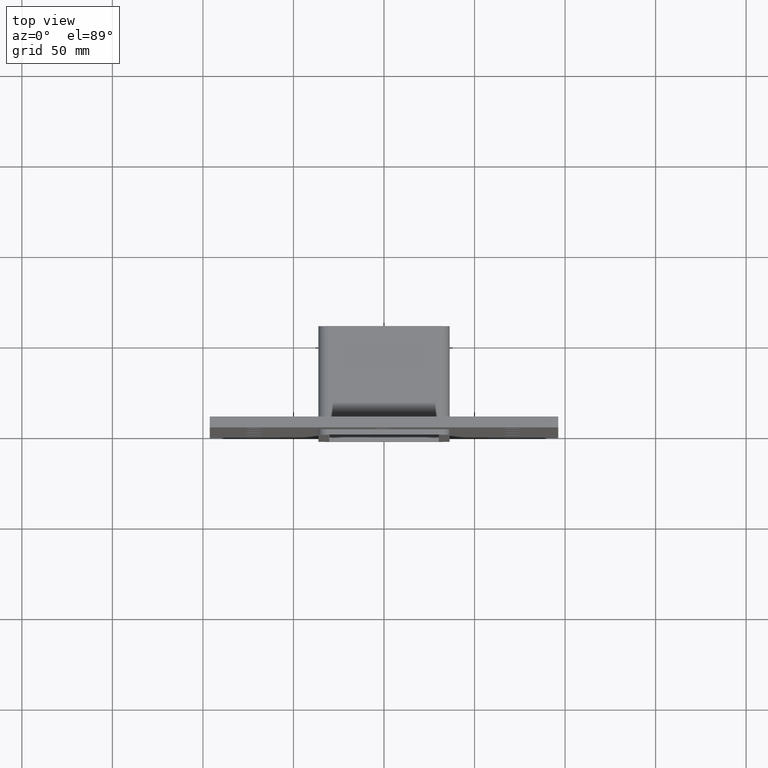
[diagram: clean part render]
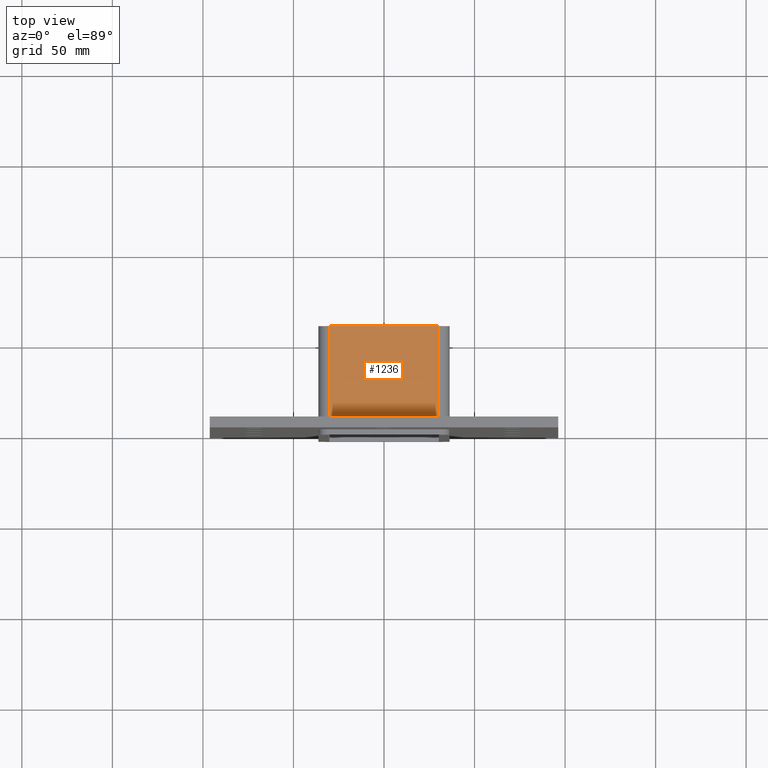
[diagram: same view with one face highlighted and labeled with its STEP entity id]
A machine part, top view. The second image highlights one B-rep face of the part: STEP entity #1236.
In plain terms, the highlighted planar face has unit normal (0, 0, 1).
Its self-contained STEP definition (entity closure, byte-faithful):
#515=CARTESIAN_POINT('',(30.250000000000004,6.000000000000001,115.0));
#516=VERTEX_POINT('',#515);
#524=CARTESIAN_POINT('',(-30.250000000000004,6.000000000000001,115.0));
#525=VERTEX_POINT('',#524);
#526=CARTESIAN_POINT('',(-30.250000000000004,6.000000000000001,115.0));
#527=DIRECTION('',(1.0,0.0,0.0));
#528=VECTOR('',#527,60.500000000000014);
#529=LINE('',#526,#528);
#530=EDGE_CURVE('',#525,#516,#529,.T.);
#850=CARTESIAN_POINT('',(30.25,57.0,115.0));
#851=VERTEX_POINT('',#850);
#859=CARTESIAN_POINT('',(30.250000000000004,57.0,115.0));
#860=DIRECTION('',(0.0,-1.0,0.0));
#861=VECTOR('',#860,51.0);
#862=LINE('',#859,#861);
#863=EDGE_CURVE('',#851,#516,#862,.T.);
#1201=CARTESIAN_POINT('',(-30.250000000000004,57.0,115.0));
#1202=VERTEX_POINT('',#1201);
#1203=CARTESIAN_POINT('',(-30.250000000000004,6.000000000000001,115.0));
#1204=DIRECTION('',(0.0,1.0,0.0));
#1205=VECTOR('',#1204,51.0);
#1206=LINE('',#1203,#1205);
#1207=EDGE_CURVE('',#525,#1202,#1206,.T.);
#1220=CARTESIAN_POINT('',(-36.250000000000007,0.0,115.0));
#1221=DIRECTION('',(0.0,0.0,1.0));
#1222=DIRECTION('',(1.0,0.0,0.0));
#1223=AXIS2_PLACEMENT_3D('',#1220,#1221,#1222);
#1224=PLANE('',#1223);
#1225=ORIENTED_EDGE('',*,*,#530,.T.);
#1226=ORIENTED_EDGE('',*,*,#863,.F.);
#1227=CARTESIAN_POINT('',(-30.250000000000007,57.0,115.0));
#1228=DIRECTION('',(1.0,0.0,0.0));
#1229=VECTOR('',#1228,60.5);
#1230=LINE('',#1227,#1229);
#1231=EDGE_CURVE('',#1202,#851,#1230,.T.);
#1232=ORIENTED_EDGE('',*,*,#1231,.F.);
#1233=ORIENTED_EDGE('',*,*,#1207,.F.);
#1234=EDGE_LOOP('',(#1225,#1226,#1232,#1233));
#1235=FACE_OUTER_BOUND('',#1234,.T.);
#1236=ADVANCED_FACE('',(#1235),#1224,.T.);